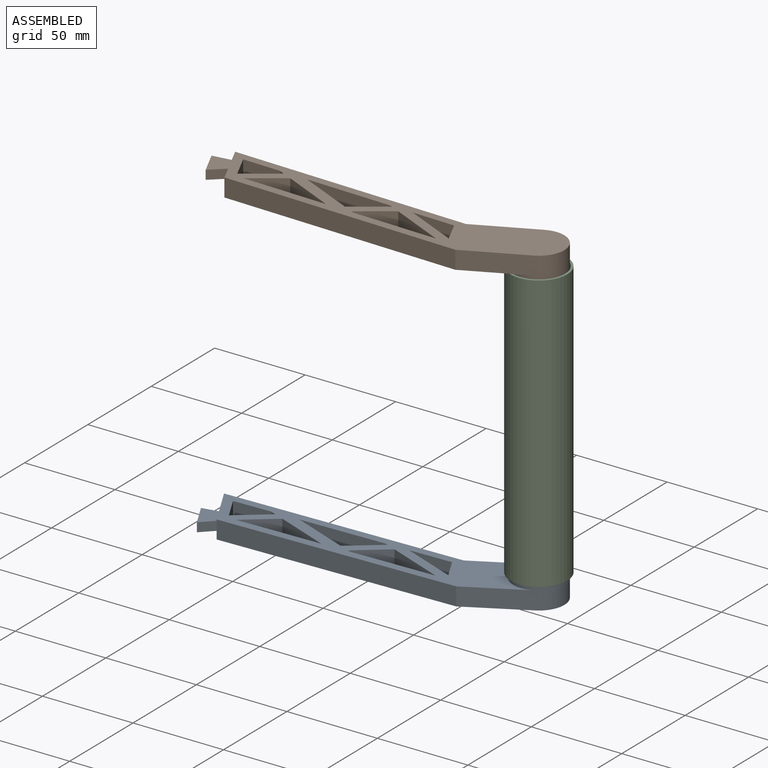
[diagram: assembled view]
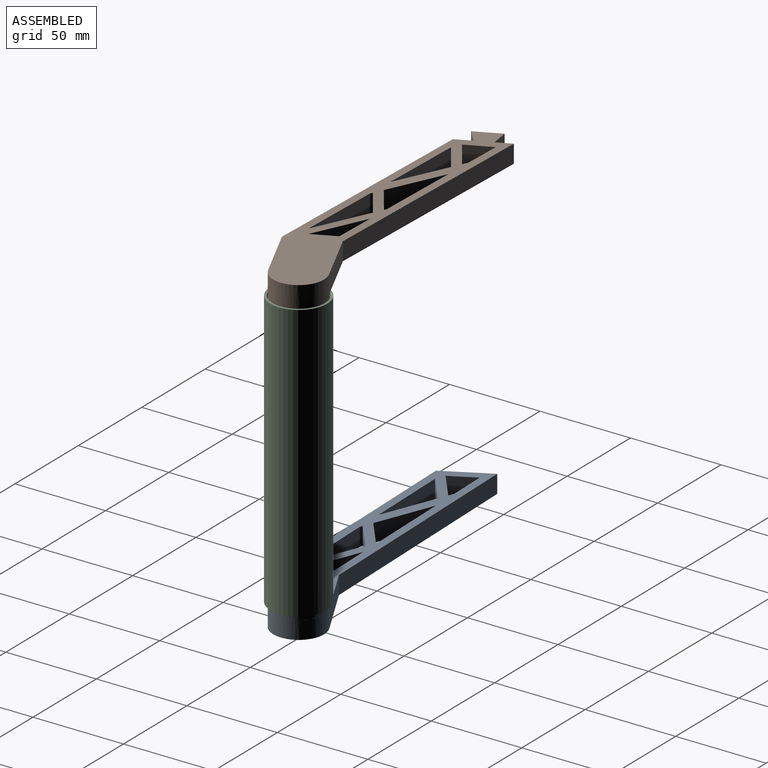
[diagram: assembled view, second angle]
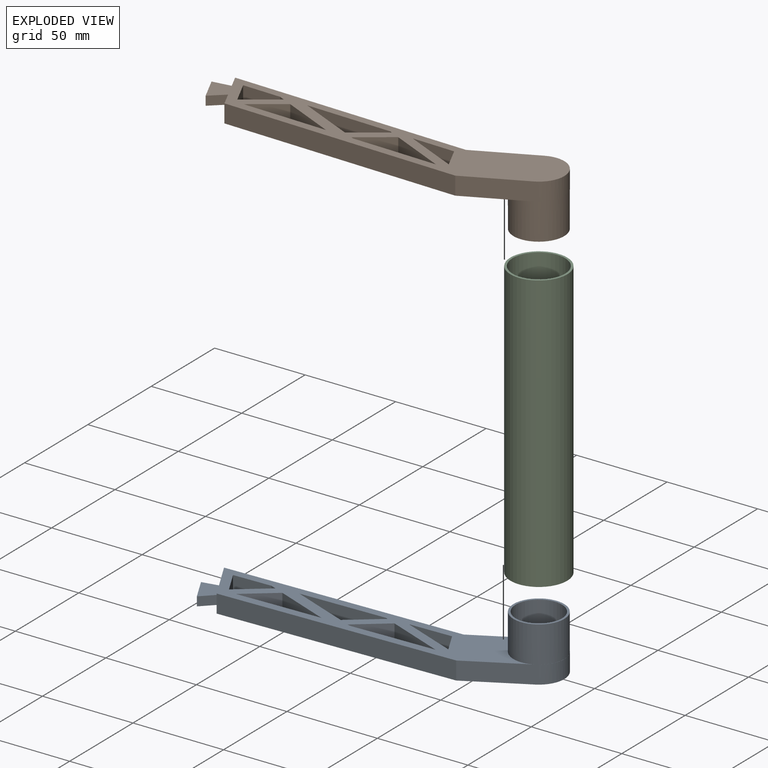
[diagram: exploded view]
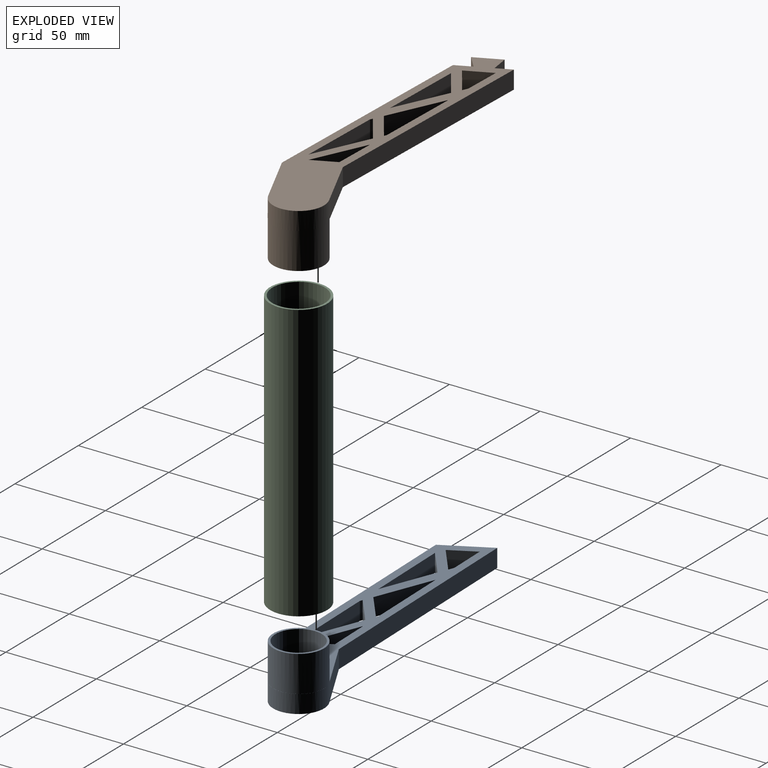
[diagram: exploded view, second angle]
ASSEMBLY  parts=3 mates=2
PART A: 36 faces, bbox 188.1x46.8x30 mm
  f0: cylinder r=14mm len=28mm, axis (0,0,1), area 1714.5mm2, adj f1,f3,f29,f31
  f1: plane 31.78x30mm, normal (-0.47,0.88,0), area 371.7mm2, adj f0,f3,f4,f9,f29,f31
  f2: cylinder r=12.8mm len=25.6mm, axis (0,0,1), area 1608.5mm2, adj f3,f5
  f3: plane 28x28mm, normal (0,0,1), area 101mm2, adj f0,f1,f2,f31
  f4: plane 188.15x46.8mm, normal (0,0,-1), area 3434.8mm2, adj f1,f6,f7,f8,f9,f10,f11,f12
  f5: plane 25.6x25.6mm, normal (0,0,1), area 514.7mm2, adj f2
  f6: plane 129.95x10mm, normal (0.03,-1,0), area 1300mm2, adj f4,f7,f28,f29
  f7: plane 31.78x16.97mm, normal (0.47,-0.88,0), area 360.2mm2, adj f4,f6,f29,f30
  f8: plane 10x0.04mm, normal (0.88,0.47,0), area 0.4mm2, adj f4,f29,f30,f31
  f9: plane 129.95x10mm, normal (-0.03,1,0), area 1300mm2, adj f1,f4,f28,f29
  f10: plane 16.54x13.03mm, normal (-0.62,0.79,0), area 210.5mm2, adj f4,f11,f27,f29
  f11: plane 13.69x10mm, normal (0.88,0.47,0), area 155.2mm2, adj f4,f10,f12,f29
  f12: plane 20.79x10mm, normal (0.03,-1,0), area 208mm2, adj f4,f11,f27,f29
  f13: plane 46.31x10mm, normal (-0.03,1,0), area 463.2mm2, adj f4,f14,f26,f29
  f14: plane 16.52x13.04mm, normal (0.62,-0.79,0), area 210.5mm2, adj f4,f13,f26,f29
  f15: plane 16.66x13.11mm, normal (-0.62,0.79,0), area 212mm2, adj f4,f16,f25,f29
  f16: plane 31.41x12.44mm, normal (0.37,0.93,0), area 337.9mm2, adj f4,f15,f17,f29
  f17: plane 46.66x10mm, normal (0.03,-1,0), area 466.8mm2, adj f4,f16,f25,f29
  f18: plane 46.66x10mm, normal (-0.03,1,0), area 466.8mm2, adj f4,f19,f24,f29
  f19: plane 10x1.4mm, normal (0.37,0.93,0), area 15mm2, adj f4,f18,f20,f29
  f20: plane 16.66x13.11mm, normal (0.62,-0.79,0), area 212mm2, adj f4,f19,f24,f29
  f21: plane 29.99x11.86mm, normal (0.37,0.93,0), area 322.5mm2, adj f4,f22,f23,f29
  f22: plane 23.33x10mm, normal (0.03,-1,0), area 233.4mm2, adj f4,f21,f23,f29
  f23: plane 12.47x10mm, normal (-0.88,-0.47,0), area 141.4mm2, adj f4,f21,f22,f29
  f24: plane 31.4x12.42mm, normal (-0.37,-0.93,0), area 337.6mm2, adj f4,f18,f20,f29
  f25: plane 10x1.41mm, normal (-0.37,-0.93,0), area 15.2mm2, adj f4,f15,f17,f29
  f26: plane 29.78x11.79mm, normal (-0.37,-0.93,0), area 320.3mm2, adj f4,f13,f14,f29
  f27: plane 10x3.06mm, normal (-0.37,-0.93,0), area 32.9mm2, adj f4,f10,f12,f29
  f28: plane 24.7x13.19mm, normal (-0.88,-0.47,0), area 232.1mm2, adj f4,f6,f9,f29,f32,f34,f35
  f29: plane 182.31x46.8mm, normal (0,0,1), area 2696.3mm2, adj f0,f1,f6,f7,f8,f9,f10,f11
  f30: cylinder r=13.98mm len=18.91mm, axis (0,0,1), area 219.6mm2, adj f4,f7,f8,f29
  f31: cylinder r=13.98mm len=30mm, axis (0,0,-1), area 252.9mm2, adj f0,f1,f3,f4,f8,f29
  f32: plane 10.03x5mm, normal (-0.2,0.98,0), area 51.2mm2, adj f4,f28,f33,f35
  f33: plane 13.64x7.28mm, normal (-0.88,-0.47,0), area 77.3mm2, adj f4,f32,f34,f35
  f34: plane 7.26x7.21mm, normal (0.7,-0.71,0), area 51.2mm2, adj f4,f28,f33,f35
  f35: plane 15.66x14.54mm, normal (0,0,1), area 122.7mm2, adj f28,f32,f33,f34
PART B: 36 faces, bbox 188.9x41.9x30 mm
  f0: cylinder r=14mm len=28mm, axis (0,0,1), area 1714.5mm2, adj f1,f3,f29,f31
  f1: plane 32.64x30mm, normal (-0.42,-0.91,0), area 371.7mm2, adj f0,f3,f4,f9,f29,f31
  f2: cylinder r=12.8mm len=25.6mm, axis (0,0,1), area 1608.5mm2, adj f3,f5
  f3: plane 28x28mm, normal (0,0,1), area 101mm2, adj f0,f1,f2,f31
  f4: plane 188.86x41.92mm, normal (0,0,-1), area 3434.8mm2, adj f1,f6,f7,f8,f9,f10,f11,f12
  f5: plane 25.6x25.6mm, normal (0,0,1), area 514.7mm2, adj f2
  f6: plane 129.95x10mm, normal (-0.03,1,0), area 1300mm2, adj f4,f7,f28,f29
  f7: plane 32.64x15.24mm, normal (0.42,0.91,0), area 360.2mm2, adj f4,f6,f29,f30
  f8: plane 10x0.04mm, normal (0.91,-0.42,0), area 0.4mm2, adj f4,f29,f30,f31
  f9: plane 129.95x10mm, normal (0.03,-1,0), area 1300mm2, adj f1,f4,f28,f29
  f10: plane 17.21x12.12mm, normal (-0.58,-0.82,0), area 210.5mm2, adj f4,f11,f27,f29
  f11: plane 14.06x10mm, normal (0.91,-0.42,0), area 155.2mm2, adj f4,f10,f12,f29
  f12: plane 20.79x10mm, normal (-0.03,1,0), area 208mm2, adj f4,f11,f27,f29
  f13: plane 46.31x10mm, normal (0.03,-1,0), area 463.2mm2, adj f4,f14,f26,f29
  f14: plane 17.2x12.13mm, normal (0.58,0.82,0), area 210.5mm2, adj f4,f13,f26,f29
  f15: plane 17.34x12.2mm, normal (-0.58,-0.82,0), area 212mm2, adj f4,f16,f25,f29
  f16: plane 30.7x14.1mm, normal (0.42,-0.91,0), area 337.9mm2, adj f4,f15,f17,f29
  f17: plane 46.66x10mm, normal (-0.03,1,0), area 466.8mm2, adj f4,f16,f25,f29
  f18: plane 46.66x10mm, normal (0.03,-1,0), area 466.8mm2, adj f4,f19,f24,f29
  f19: plane 10x1.37mm, normal (0.42,-0.91,0), area 15mm2, adj f4,f18,f20,f29
  f20: plane 17.34x12.2mm, normal (0.58,0.82,0), area 212mm2, adj f4,f19,f24,f29
  f21: plane 29.31x13.45mm, normal (0.42,-0.91,0), area 322.5mm2, adj f4,f22,f23,f29
  f22: plane 23.33x10mm, normal (-0.03,1,0), area 233.4mm2, adj f4,f21,f23,f29
  f23: plane 12.81x10mm, normal (-0.91,0.42,0), area 141.4mm2, adj f4,f21,f22,f29
  f24: plane 30.69x14.08mm, normal (-0.42,0.91,0), area 337.6mm2, adj f4,f18,f20,f29
  f25: plane 10x1.38mm, normal (-0.42,0.91,0), area 15.2mm2, adj f4,f15,f17,f29
  f26: plane 29.11x13.37mm, normal (-0.42,0.91,0), area 320.3mm2, adj f4,f13,f14,f29
  f27: plane 10x2.99mm, normal (-0.42,0.91,0), area 32.9mm2, adj f4,f10,f12,f29
  f28: plane 25.37x11.85mm, normal (-0.91,0.42,0), area 232.1mm2, adj f4,f6,f9,f29,f32,f34,f35
  f29: plane 182.5x41.92mm, normal (0,0,1), area 2696.3mm2, adj f0,f1,f6,f7,f8,f9,f10,f11
  f30: cylinder r=13.98mm len=18.58mm, axis (0,0,1), area 219.6mm2, adj f4,f7,f8,f29
  f31: cylinder r=13.98mm len=30mm, axis (0,0,-1), area 252.9mm2, adj f0,f1,f3,f4,f8,f29
  f32: plane 10.12x5mm, normal (-0.14,-0.99,0), area 51.2mm2, adj f4,f28,f33,f35
  f33: plane 14.01x6.54mm, normal (-0.91,0.42,0), area 77.3mm2, adj f4,f32,f34,f35
  f34: plane 7.64x6.81mm, normal (0.67,0.75,0), area 51.2mm2, adj f4,f28,f33,f35
  f35: plane 15.49x14.18mm, normal (0,0,1), area 122.7mm2, adj f28,f32,f33,f34
PART C: 4 faces, bbox 31.4x31.4x153 mm
  f0: cylinder r=14.5mm len=153mm, axis (0,0,1), area 13939.2mm2, adj f2,f3
  f1: cylinder r=15.7mm len=153mm, axis (0,0,1), area 15092.8mm2, adj f2,f3
  f2: plane 31.4x31.4mm, normal (0,0,1), area 113.9mm2, adj f0,f1
  f3: plane 31.4x31.4mm, normal (0,0,-1), area 113.9mm2, adj f0,f1
PLACE A rot(axis=(0,0,-1),0deg) t=(-124.64,-47.35,-57)mm
PLACE B rot(axis=(1,0,0),180deg) t=(-126.71,-42.96,120.16)mm
PLACE C rot(axis=(0,0,-1),0deg) t=(-42.9,55.06,-44.45)mm
MATE slider A.f0 <-> C.f0  axis (0,0,1) through (-26.22,-6.57,-27)mm
MATE slider B.f0 <-> C.f0  axis (0,0,-1) through (-26.22,-6.57,90.16)mm
